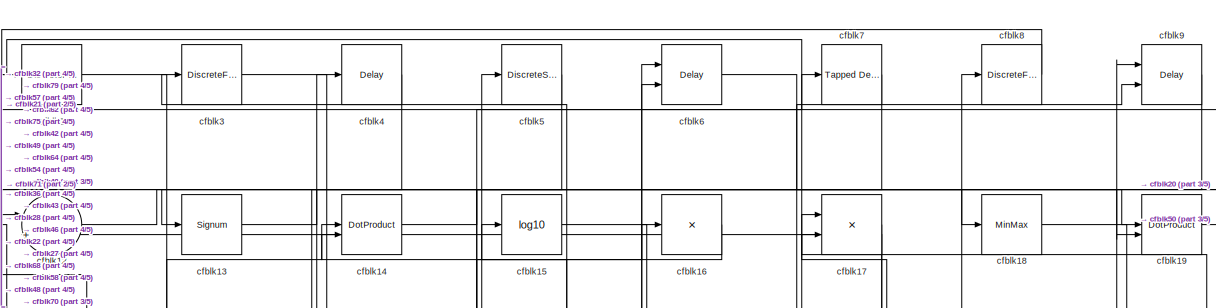
[diagram: root canvas - part 1/5, full width, top band]
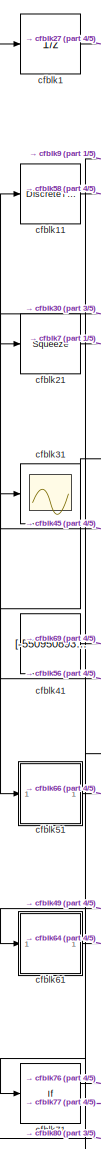
[diagram: root canvas - part 2/5, left side, full height]
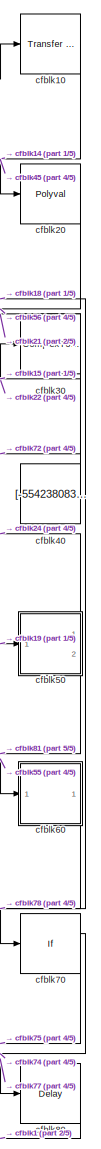
[diagram: root canvas - part 3/5, right side, full height]
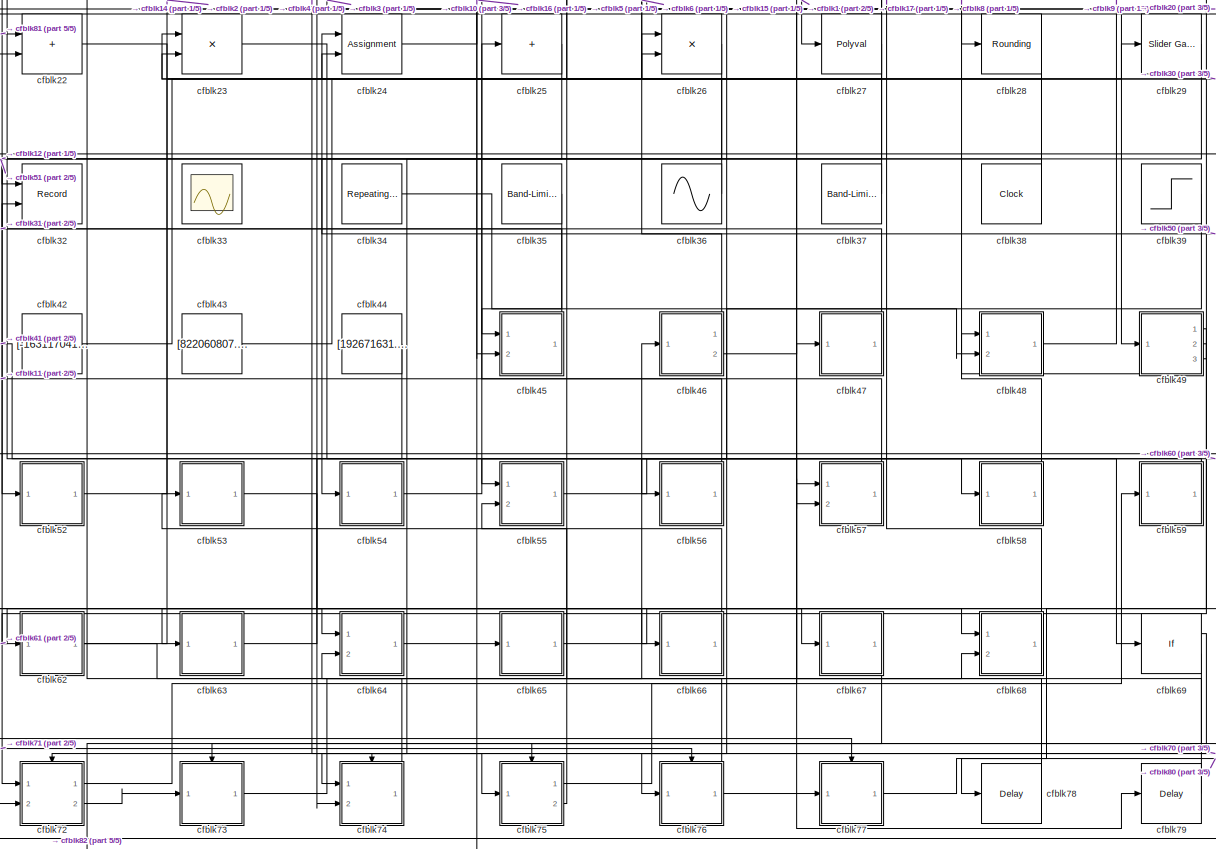
[diagram: root canvas - part 4/5, full width, middle band]
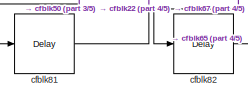
[diagram: root canvas - part 5/5, bottom left region]
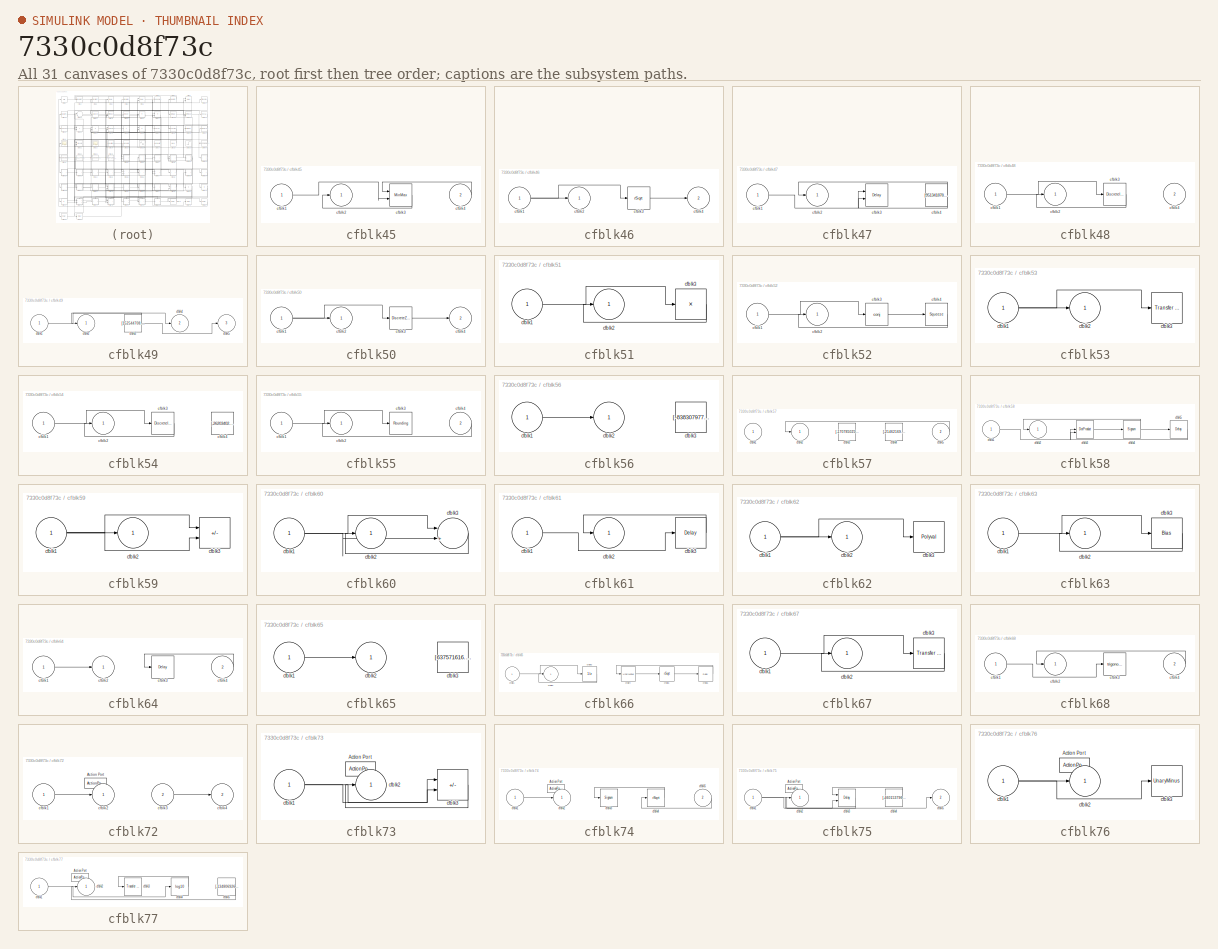
[diagram: thumbnail index - all 31 canvases of the model, root first then tree order]
MODEL slx_7330c0d8f73c
KIND model
CONFIG AbsTol = auto
CONFIG EnableMultiTasking = off
CONFIG FixedStep = auto
CONFIG MaxStep = auto
CONFIG MinStep = auto
CONFIG RelTol = 1e-3
CONFIG SampleTimeConstraint = Unconstrained
CONFIG SolverName = VariableStepAuto
CONFIG StartTime = 0.0
CONFIG StopTime = 10.0
BLOCK [UnitDelay] cfblk1
  HasFrameUpgradeWarning = on
BLOCK [Reference] cfblk10  REF=simulink/Discrete/Transfer Fcn
First Order
  Ports = [1, 1]
  SourceBlock = simulink/Discrete/Transfer Fcn\nFirst Order
  SourceProductBaseCode = SL
  SourceType = First Order Transfer Fcn
BLOCK [DiscreteTransferFcn] cfblk11
  InputPortMap = u0
  Ports = [1, 1]
  SampleTime = 1
BLOCK [Sum] cfblk12
  Inputs = |++
  Ports = [2, 1]
BLOCK [Signum] cfblk13
BLOCK [DotProduct] cfblk14
  OutDataTypeStr = Inherit: Inherit via internal rule
BLOCK [Math] cfblk15
  Operator = log10
  Ports = [1, 1]
BLOCK [Product] cfblk16
  Inputs = *
  Ports = [1, 1]
BLOCK [Product] cfblk17
  Ports = [2, 1]
BLOCK [MinMax] cfblk18
  Ports = [1, 1]
BLOCK [DotProduct] cfblk19
  OutDataTypeStr = Inherit: Inherit via internal rule
BLOCK [DiscreteFilter] cfblk2
  InputPortMap = u0
  Ports = [1, 1]
  SampleTime = 1
BLOCK [Polyval] cfblk20
  Coefs = [ +2.081618890e-019, -1.441693666e-014, +4.719686976e-010, -8.536869453e-006, +1.621573104e-001, -8.087801117e+001 ]
BLOCK [Squeeze] cfblk21
BLOCK [Sum] cfblk22
  IconShape = rectangular
  Ports = [2, 1]
BLOCK [Product] cfblk23
  Ports = [2, 1]
BLOCK [Assignment] cfblk24
  DiagnosticForDimensions = Warning
  IndexOptions = Index vector (dialog)
  Indices = 1
  OutputSizes = 1
  Ports = [2, 1]
BLOCK [Sum] cfblk25
  IconShape = rectangular
  Inputs = +
  Ports = [1, 1]
BLOCK [Product] cfblk26
  Inputs = **
  Ports = [2, 1]
BLOCK [Polyval] cfblk27
  Coefs = [ +2.081618890e-019, -1.441693666e-014, +4.719686976e-010, -8.536869453e-006, +1.621573104e-001, -8.087801117e+001 ]
BLOCK [Rounding] cfblk28
BLOCK [Reference] cfblk29  REF=simulink/Math
Operations/Slider
Gain
  Ports = [1, 1]
  SourceBlock = simulink/Math\nOperations/Slider\nGain
  SourceProductBaseCode = SL
  SourceType = Slider Gain
BLOCK [DiscreteFir] cfblk3
  InputPortMap = u0
  OutputPortMap = o0
  Ports = [1, 1]
  SampleTime = 1
BLOCK [ComplexToRealImag] cfblk30
  Ports = [1, 2]
BLOCK [Scope] cfblk31
  Floating = off
  NumInputPorts = 1
  Ports = [1]
BLOCK [Record] cfblk32
  CompatibilityTag = XY
  FileSettingsInternal = {"entries":[{"content":{"excelSettings":{"content":{},"type":"Streamout.ExcelSettings"}},"type":"Streamout.FileSettingStorage","uuid":"0d098b71-33ef-40f3-9a02-d480e724f9f5"}],"packageUris":["http://schema.mathworks.com/mf0/streamout_blocks/R2020a"],"version":"1.0"}
  Layout = [1 1]
  Ports = [2]
  SignalsInternal = {"entries":[{"content":{"signals":[{"content":{"blockPath":["sampleModel28/cfblk32"],"channel":[],"dimensions":[1],"domain":"sampleModel28/cfblk32","lineColor":"#a2142f","plots":[1],"port":1,"sid":[""],"signalID":1098,"signalName":"cfblk5"},"type":"RecordBlkView.Signal","uuid":"c05ac424-aba4-409f-b4c1-56cef1214d81"},{"content":{"blockPath":["sampleModel28/cfblk32"],"channel":[],"dimensions":[1],"d...<+378ch>
  VisualizationBindings = {"xyplotplugin":{"info":[{"series":[{"bindingParametersList":[{"parameter":"X-Axis","signalID":1098,"signalName":"cfblk5"},{"parameter":"Y-Axis","signalID":1102,"signalName":"cfblk47"}],"seriesID":10739}],"subplotID":1}]}}
BLOCK [Scope] cfblk33
  Floating = on
  NumInputPorts = 1
  Ports = []
BLOCK [Reference] cfblk34  REF=simulink/Sources/Repeating
Sequence
Stair
  Ports = [0, 1]
  SourceBlock = simulink/Sources/Repeating\nSequence\nStair
  SourceProductBaseCode = SL
  SourceType = Repeating Sequence Stair
BLOCK [Reference] cfblk35  REF=simulink/Sources/Band-Limited
White Noise
  Ports = [0, 1]
  SourceBlock = simulink/Sources/Band-Limited\nWhite Noise
  SourceProductBaseCode = SL
  SourceType = Band-Limited White Noise.
BLOCK [Sin] cfblk36
  Amplitude = [581087378.224464]
  Bias = [-112255412.824312]
  Ports = [0, 1]
  SampleTime = 0
BLOCK [Reference] cfblk37  REF=simulink/Sources/Band-Limited
White Noise
  Ports = [0, 1]
  SourceBlock = simulink/Sources/Band-Limited\nWhite Noise
  SourceProductBaseCode = SL
  SourceType = Band-Limited White Noise.
BLOCK [Clock] cfblk38
BLOCK [Step] cfblk39
  After = [921650503.309125]
  Before = [-506979318.166456]
  SampleTime = 0
  Time = [15.000000]
BLOCK [Delay] cfblk4
  InputPortMap = u0
  Ports = [1, 1]
  SampleTime = 1
BLOCK [Constant] cfblk40
  SampleTime = 1
  Value = [-554238083.122668]
BLOCK [Constant] cfblk41
  SampleTime = 1
  Value = [-550950893.327966]
BLOCK [Constant] cfblk42
  SampleTime = 1
  Value = [-163117041.994822]
BLOCK [Constant] cfblk43
  SampleTime = 1
  Value = [822060807.861562]
BLOCK [Constant] cfblk44
  SampleTime = 1
  Value = [192671631.552760]
BLOCK [SubSystem] cfblk45
  Ports = [2, 1]
  RequestExecContextInheritance = off
BLOCK [Inport] cfblk45/cfblk1
BLOCK [Outport] cfblk45/cfblk2
BLOCK [MinMax] cfblk45/cfblk3
  Inputs = 2
  Ports = [2, 1]
BLOCK [Inport] cfblk45/cfblk4
  Port = 2
BLOCK [SubSystem] cfblk46
  Ports = [1, 2]
  RequestExecContextInheritance = off
BLOCK [Inport] cfblk46/cfblk1
BLOCK [Outport] cfblk46/cfblk2
BLOCK [Sqrt] cfblk46/cfblk3
  AlgorithmType = Newton-Raphson
  Operator = rSqrt
BLOCK [Outport] cfblk46/cfblk4
  Port = 2
BLOCK [SubSystem] cfblk47
  Ports = [1, 1]
  RequestExecContextInheritance = off
BLOCK [Inport] cfblk47/cfblk1
BLOCK [Outport] cfblk47/cfblk2
BLOCK [Delay] cfblk47/cfblk3
  DelayLengthSource = Input port
  InputPortMap = u0,p1
  Ports = [2, 1]
  SampleTime = 1
BLOCK [Constant] cfblk47/cfblk4
  SampleTime = 1
  Value = [951341878.299740]
BLOCK [SubSystem] cfblk48
  Ports = [2, 1]
  RequestExecContextInheritance = off
BLOCK [Inport] cfblk48/cfblk1
BLOCK [Outport] cfblk48/cfblk2
BLOCK [DiscreteIntegrator] cfblk48/cfblk3
  ICPrevOutput = DiscIntNeverNeededParam
  ICPrevScaledInput = DiscIntNeverNeededParam
  InitialConditionSetting = Auto
  Ports = [1, 1]
BLOCK [Inport] cfblk48/cfblk4
  Port = 2
BLOCK [SubSystem] cfblk49
  Ports = [1, 3]
  RequestExecContextInheritance = off
BLOCK [Inport] cfblk49/cfblk1
BLOCK [Outport] cfblk49/cfblk2
BLOCK [Constant] cfblk49/cfblk3
  SampleTime = 1
  Value = [152544708.124074]
BLOCK [Outport] cfblk49/cfblk4
  Port = 2
BLOCK [Outport] cfblk49/cfblk5
  Port = 3
BLOCK [DiscreteStateSpace] cfblk5
BLOCK [SubSystem] cfblk50
  Ports = [1, 2]
  RequestExecContextInheritance = off
BLOCK [Inport] cfblk50/cfblk1
BLOCK [Outport] cfblk50/cfblk2
BLOCK [DiscreteZeroPole] cfblk50/cfblk3
  Gain = 1
  Poles = [0 0.5]
BLOCK [Outport] cfblk50/cfblk4
  Port = 2
BLOCK [SubSystem] cfblk51
  Ports = [1, 1]
  RequestExecContextInheritance = off
BLOCK [Inport] cfblk51/cfblk1
BLOCK [Outport] cfblk51/cfblk2
BLOCK [Product] cfblk51/cfblk3
  Inputs = *
  Ports = [1, 1]
BLOCK [SubSystem] cfblk52
  Ports = [1, 1]
  RequestExecContextInheritance = off
BLOCK [Inport] cfblk52/cfblk1
BLOCK [Outport] cfblk52/cfblk2
BLOCK [Math] cfblk52/cfblk3
  Operator = conj
  Ports = [1, 1]
BLOCK [Squeeze] cfblk52/cfblk4
BLOCK [SubSystem] cfblk53
  Ports = [1, 1]
  RequestExecContextInheritance = off
BLOCK [Inport] cfblk53/cfblk1
BLOCK [Outport] cfblk53/cfblk2
BLOCK [Reference] cfblk53/cfblk3  REF=simulink/Discrete/Transfer Fcn
Lead or Lag
  Ports = [1, 1]
  SourceBlock = simulink/Discrete/Transfer Fcn\nLead or Lag
  SourceProductBaseCode = SL
  SourceType = Lead or Lag Compensator
BLOCK [SubSystem] cfblk54
  Ports = [1, 1]
  RequestExecContextInheritance = off
BLOCK [Inport] cfblk54/cfblk1
BLOCK [Outport] cfblk54/cfblk2
BLOCK [DiscreteIntegrator] cfblk54/cfblk3
  ICPrevOutput = DiscIntNeverNeededParam
  ICPrevScaledInput = DiscIntNeverNeededParam
  InitialConditionSetting = Auto
  Ports = [1, 1]
BLOCK [Constant] cfblk54/cfblk4
  SampleTime = 1
  Value = [-26203402.256619]
BLOCK [SubSystem] cfblk55
  Ports = [2, 1]
  RequestExecContextInheritance = off
BLOCK [Inport] cfblk55/cfblk1
BLOCK [Outport] cfblk55/cfblk2
BLOCK [Rounding] cfblk55/cfblk3
BLOCK [Inport] cfblk55/cfblk4
  Port = 2
BLOCK [SubSystem] cfblk56
  Ports = [1, 1]
  RequestExecContextInheritance = off
BLOCK [Inport] cfblk56/cfblk1
BLOCK [Outport] cfblk56/cfblk2
BLOCK [Constant] cfblk56/cfblk3
  SampleTime = 1
  Value = [-838307977.301134]
BLOCK [SubSystem] cfblk57
  Ports = [2, 1]
  RequestExecContextInheritance = off
BLOCK [Inport] cfblk57/cfblk1
BLOCK [Outport] cfblk57/cfblk2
BLOCK [Constant] cfblk57/cfblk3
  SampleTime = 1
  Value = [-170785025.952430]
BLOCK [Constant] cfblk57/cfblk4
  SampleTime = 1
  Value = [-21462169.744561]
BLOCK [Inport] cfblk57/cfblk5
  Port = 2
BLOCK [SubSystem] cfblk58
  Ports = [1, 1]
  RequestExecContextInheritance = off
BLOCK [Inport] cfblk58/cfblk1
BLOCK [Outport] cfblk58/cfblk2
BLOCK [DotProduct] cfblk58/cfblk3
  OutDataTypeStr = Inherit: Inherit via internal rule
BLOCK [Signum] cfblk58/cfblk4
BLOCK [Delay] cfblk58/cfblk5
  InputPortMap = u0
  Ports = [1, 1]
  SampleTime = 1
BLOCK [SubSystem] cfblk59
  Ports = [1, 1]
  RequestExecContextInheritance = off
BLOCK [Inport] cfblk59/cfblk1
BLOCK [Outport] cfblk59/cfblk2
BLOCK [Sum] cfblk59/cfblk3
  IconShape = rectangular
  Inputs = +-
  Ports = [2, 1]
BLOCK [Delay] cfblk6
  DelayLengthSource = Input port
  InputPortMap = u0,p1
  Ports = [2, 1]
  SampleTime = 1
BLOCK [SubSystem] cfblk60
  Ports = [1, 1]
  RequestExecContextInheritance = off
BLOCK [Inport] cfblk60/cfblk1
BLOCK [Outport] cfblk60/cfblk2
BLOCK [Sum] cfblk60/cfblk3
  Inputs = |++
  Ports = [2, 1]
BLOCK [SubSystem] cfblk61
  Ports = [1, 1]
  RequestExecContextInheritance = off
BLOCK [Inport] cfblk61/cfblk1
BLOCK [Outport] cfblk61/cfblk2
BLOCK [Delay] cfblk61/cfblk3
  InputPortMap = u0
  Ports = [1, 1]
  SampleTime = 1
BLOCK [SubSystem] cfblk62
  Ports = [1, 1]
  RequestExecContextInheritance = off
BLOCK [Inport] cfblk62/cfblk1
BLOCK [Outport] cfblk62/cfblk2
BLOCK [Polyval] cfblk62/cfblk3
  Coefs = [ +2.081618890e-019, -1.441693666e-014, +4.719686976e-010, -8.536869453e-006, +1.621573104e-001, -8.087801117e+001 ]
BLOCK [SubSystem] cfblk63
  Ports = [1, 1]
  RequestExecContextInheritance = off
BLOCK [Inport] cfblk63/cfblk1
BLOCK [Outport] cfblk63/cfblk2
BLOCK [Bias] cfblk63/cfblk3
  Bias = [-400558462.816942]
  SaturateOnIntegerOverflow = off
BLOCK [SubSystem] cfblk64
  Ports = [2, 1]
  RequestExecContextInheritance = off
BLOCK [Inport] cfblk64/cfblk1
BLOCK [Outport] cfblk64/cfblk2
BLOCK [Delay] cfblk64/cfblk3
  InputPortMap = u0
  Ports = [1, 1]
  SampleTime = 1
BLOCK [Inport] cfblk64/cfblk4
  Port = 2
BLOCK [SubSystem] cfblk65
  Ports = [1, 1]
  RequestExecContextInheritance = off
BLOCK [Inport] cfblk65/cfblk1
BLOCK [Outport] cfblk65/cfblk2
BLOCK [Constant] cfblk65/cfblk3
  SampleTime = 1
  Value = [637571616.540916]
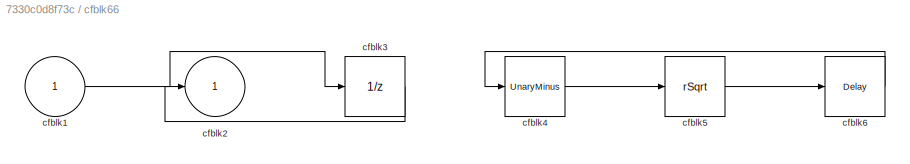
BLOCK [SubSystem] cfblk66
  Ports = [1, 1]
  RequestExecContextInheritance = off
BLOCK [Inport] cfblk66/cfblk1
BLOCK [Outport] cfblk66/cfblk2
BLOCK [UnitDelay] cfblk66/cfblk3
  HasFrameUpgradeWarning = on
BLOCK [UnaryMinus] cfblk66/cfblk4
BLOCK [Sqrt] cfblk66/cfblk5
  AlgorithmType = Newton-Raphson
  Operator = rSqrt
BLOCK [Delay] cfblk66/cfblk6
  InputPortMap = u0
  Ports = [1, 1]
  SampleTime = 1
BLOCK [SubSystem] cfblk67
  Ports = [1, 1]
  RequestExecContextInheritance = off
BLOCK [Inport] cfblk67/cfblk1
BLOCK [Outport] cfblk67/cfblk2
BLOCK [Reference] cfblk67/cfblk3  REF=simulink/Discrete/Transfer Fcn
Real Zero
  Ports = [1, 1]
  SourceBlock = simulink/Discrete/Transfer Fcn\nReal Zero
  SourceProductBaseCode = SL
  SourceType = Transfer Fcn Real Zero
BLOCK [SubSystem] cfblk68
  Ports = [2, 1]
  RequestExecContextInheritance = off
BLOCK [Inport] cfblk68/cfblk1
BLOCK [Outport] cfblk68/cfblk2
BLOCK [Trigonometry] cfblk68/cfblk3
  Ports = [1, 1]
BLOCK [Inport] cfblk68/cfblk4
  Port = 2
BLOCK [If] cfblk69
  IfExpression = u1 >= 0
  Ports = [1, 2]
  SampleTime = 1
BLOCK [Reference] cfblk7  REF=simulink/Discrete/Tapped Delay
  Ports = [1, 1]
  SourceBlock = simulink/Discrete/Tapped Delay
  SourceProductBaseCode = SL
  SourceType = Tapped Delay Line
BLOCK [If] cfblk70
  IfExpression = u1 >= 0
  Ports = [1, 2]
  SampleTime = 1
BLOCK [If] cfblk71
  IfExpression = u1 >= 0
  Ports = [1, 2]
  SampleTime = 1
BLOCK [SubSystem] cfblk72
  Ports = [2, 2, 0, 0, 0, 0, 0, 1]
  RequestExecContextInheritance = off
  TreatAsAtomicUnit = on
BLOCK [ActionPort] cfblk72/Action Port
  ActionPortLabel = if(u1 >= 0)
BLOCK [Inport] cfblk72/cfblk1
BLOCK [Outport] cfblk72/cfblk2
BLOCK [Inport] cfblk72/cfblk3
  Port = 2
BLOCK [Outport] cfblk72/cfblk4
  Port = 2
BLOCK [SubSystem] cfblk73
  Ports = [1, 1, 0, 0, 0, 0, 0, 1]
  RequestExecContextInheritance = off
  TreatAsAtomicUnit = on
BLOCK [ActionPort] cfblk73/Action Port
  ActionPortLabel = else
BLOCK [Inport] cfblk73/cfblk1
BLOCK [Outport] cfblk73/cfblk2
BLOCK [Sum] cfblk73/cfblk3
  IconShape = rectangular
  Inputs = --
  Ports = [2, 1]
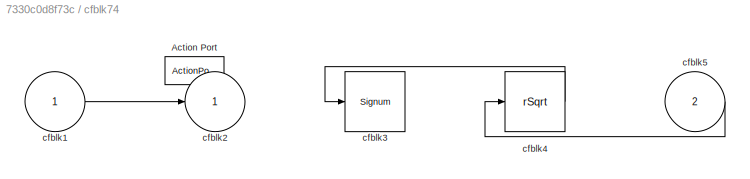
BLOCK [SubSystem] cfblk74
  Ports = [2, 1, 0, 0, 0, 0, 0, 1]
  RequestExecContextInheritance = off
  TreatAsAtomicUnit = on
BLOCK [ActionPort] cfblk74/Action Port
  ActionPortLabel = if(u1 >= 0)
BLOCK [Inport] cfblk74/cfblk1
BLOCK [Outport] cfblk74/cfblk2
BLOCK [Signum] cfblk74/cfblk3
BLOCK [Sqrt] cfblk74/cfblk4
  AlgorithmType = Newton-Raphson
  Operator = rSqrt
BLOCK [Inport] cfblk74/cfblk5
  Port = 2
BLOCK [SubSystem] cfblk75
  Ports = [1, 2, 0, 0, 0, 0, 0, 1]
  RequestExecContextInheritance = off
  TreatAsAtomicUnit = on
BLOCK [ActionPort] cfblk75/Action Port
  ActionPortLabel = else
BLOCK [Inport] cfblk75/cfblk1
BLOCK [Outport] cfblk75/cfblk2
BLOCK [Delay] cfblk75/cfblk3
  DelayLengthSource = Input port
  InputPortMap = u0,p1
  Ports = [2, 1]
BLOCK [Constant] cfblk75/cfblk4
  SampleTime = 1
  Value = [-460153796.942291]
BLOCK [Outport] cfblk75/cfblk5
  Port = 2
BLOCK [SubSystem] cfblk76
  Ports = [1, 1, 0, 0, 0, 0, 0, 1]
  RequestExecContextInheritance = off
  TreatAsAtomicUnit = on
BLOCK [ActionPort] cfblk76/Action Port
  ActionPortLabel = if(u1 >= 0)
BLOCK [Inport] cfblk76/cfblk1
BLOCK [Outport] cfblk76/cfblk2
BLOCK [UnaryMinus] cfblk76/cfblk3
BLOCK [SubSystem] cfblk77
  Ports = [1, 1, 0, 0, 0, 0, 0, 1]
  RequestExecContextInheritance = off
  TreatAsAtomicUnit = on
BLOCK [ActionPort] cfblk77/Action Port
  ActionPortLabel = else
BLOCK [Inport] cfblk77/cfblk1
BLOCK [Outport] cfblk77/cfblk2
BLOCK [Reference] cfblk77/cfblk3  REF=simulink/Discrete/Transfer Fcn
Lead or Lag
  Ports = [1, 1]
  SourceBlock = simulink/Discrete/Transfer Fcn\nLead or Lag
  SourceProductBaseCode = SL
  SourceType = Lead or Lag Compensator
BLOCK [Math] cfblk77/cfblk4
  Operator = log10
  Ports = [1, 1]
BLOCK [Constant] cfblk77/cfblk5
  SampleTime = 1
  Value = [-134806926.317161]
BLOCK [Delay] cfblk78
  InputPortMap = u0
  Ports = [1, 1]
  SampleTime = 1
BLOCK [Delay] cfblk79
  InputPortMap = u0
  Ports = [1, 1]
  SampleTime = 1
BLOCK [DiscreteFilter] cfblk8
  InputPortMap = u0
  Ports = [1, 1]
  SampleTime = 1
BLOCK [Delay] cfblk80
  InputPortMap = u0
  Ports = [1, 1]
  SampleTime = 1
BLOCK [Delay] cfblk81
  InputPortMap = u0
  Ports = [1, 1]
  SampleTime = 1
BLOCK [Delay] cfblk82
  InputPortMap = u0
  Ports = [1, 1]
  SampleTime = 1
BLOCK [Delay] cfblk9
  InputPortMap = u0,e6
  Ports = [2, 1]
  SampleTime = 1
  ShowEnablePort = on
LINE cfblk10:1 -> cfblk45:2
LINE cfblk11:1 -> cfblk58:1
LINE cfblk12:1 -> cfblk18:1
LINE cfblk13:1 -> cfblk19:1
LINE cfblk14:1 -> cfblk20:1
LINE cfblk15:1 -> cfblk28:1
LINE cfblk16:1 -> cfblk14:2
LINE cfblk17:1 -> cfblk22:2
LINE cfblk18:1 -> cfblk70:1
LINE cfblk19:1 -> cfblk50:1
LINE cfblk1:1 -> cfblk27:1
LINE cfblk20:1 -> cfblk56:1
LINE cfblk21:1 -> cfblk7:1
LINE cfblk22:1 -> cfblk30:1
LINE cfblk23:1 -> cfblk77:1
LINE cfblk24:1 -> cfblk10:1
LINE cfblk25:1 -> cfblk52:1
LINE cfblk26:1 -> cfblk54:1
NET cfblk27:1 -> cfblk12:2, cfblk24:2, cfblk51:1
LINE cfblk28:1 -> cfblk74:1
LINE cfblk29:1 -> cfblk72:1
LINE cfblk2:1 -> cfblk57:2
LINE cfblk30:1 -> cfblk21:1
LINE cfblk30:2 -> cfblk72:2
LINE cfblk34:1 -> cfblk48:2
LINE cfblk35:1 -> cfblk45:1
LINE cfblk36:1 -> cfblk6:1
LINE cfblk37:1 -> cfblk23:1
LINE cfblk38:1 -> cfblk23:2
LINE cfblk39:1 -> cfblk76:1
LINE cfblk3:1 -> cfblk49:1
LINE cfblk40:1 -> cfblk15:1
LINE cfblk41:1 -> cfblk69:1
LINE cfblk42:1 -> cfblk4:1
LINE cfblk43:1 -> cfblk6:2
LINE cfblk44:1 -> cfblk74:2
LINE cfblk45/cfblk1:1 -> cfblk45/cfblk3:2
LINE cfblk45/cfblk3:1 -> cfblk45/cfblk2:1
LINE cfblk45/cfblk4:1 -> cfblk45/cfblk3:1
LINE cfblk45:1 -> cfblk31:1
NET cfblk46/cfblk1:1 -> cfblk46/cfblk2:1, cfblk46/cfblk3:1
LINE cfblk46/cfblk3:1 -> cfblk46/cfblk4:1
LINE cfblk46:1 -> cfblk26:1
LINE cfblk46:2 -> cfblk9:2
LINE cfblk47/cfblk1:1 -> cfblk47/cfblk3:1
NET cfblk47/cfblk4:1 -> cfblk47/cfblk2:1, cfblk47/cfblk3:2
LINE cfblk47:1 -> cfblk32:2
LINE cfblk48/cfblk1:1 -> cfblk48/cfblk3:1
LINE cfblk48/cfblk3:1 -> cfblk48/cfblk2:1
LINE cfblk48:1 -> cfblk9:1
LINE cfblk49/cfblk1:1 -> cfblk49/cfblk4:1
NET cfblk49/cfblk3:1 -> cfblk49/cfblk2:1, cfblk49/cfblk5:1
LINE cfblk49:1 -> cfblk62:1
LINE cfblk49:2 -> cfblk61:1
NET cfblk49:3 -> cfblk17:2, cfblk48:1
LINE cfblk4:1 -> cfblk75:1
NET cfblk50/cfblk1:1 -> cfblk50/cfblk2:1, cfblk50/cfblk3:1
LINE cfblk50/cfblk3:1 -> cfblk50/cfblk4:1
LINE cfblk50:1 -> cfblk24:1
LINE cfblk50:2 -> cfblk81:1
LINE cfblk51/cfblk1:1 -> cfblk51/cfblk3:1
LINE cfblk51/cfblk3:1 -> cfblk51/cfblk2:1
LINE cfblk51:1 -> cfblk66:1
LINE cfblk52/cfblk1:1 -> cfblk52/cfblk3:1
LINE cfblk52/cfblk3:1 -> cfblk52/cfblk4:1
LINE cfblk52/cfblk4:1 -> cfblk52/cfblk2:1
LINE cfblk52:1 -> cfblk29:1
NET cfblk53/cfblk1:1 -> cfblk53/cfblk2:1, cfblk53/cfblk3:1
LINE cfblk53:1 -> cfblk68:1
LINE cfblk54/cfblk1:1 -> cfblk54/cfblk3:1
LINE cfblk54/cfblk3:1 -> cfblk54/cfblk2:1
LINE cfblk54:1 -> cfblk5:1
LINE cfblk55/cfblk1:1 -> cfblk55/cfblk3:1
LINE cfblk55/cfblk4:1 -> cfblk55/cfblk2:1
LINE cfblk55:1 -> cfblk60:1
LINE cfblk56/cfblk1:1 -> cfblk56/cfblk2:1
LINE cfblk56:1 -> cfblk11:1
LINE cfblk57/cfblk5:1 -> cfblk57/cfblk2:1
LINE cfblk57:1 -> cfblk25:1
LINE cfblk58/cfblk1:1 -> cfblk58/cfblk3:1
LINE cfblk58/cfblk3:1 -> cfblk58/cfblk4:1
NET cfblk58/cfblk4:1 -> cfblk58/cfblk2:1, cfblk58/cfblk5:1
LINE cfblk58/cfblk5:1 -> cfblk58/cfblk3:2
LINE cfblk58:1 -> cfblk8:1
NET cfblk59/cfblk1:1 -> cfblk59/cfblk2:1, cfblk59/cfblk3:1, cfblk59/cfblk3:2
LINE cfblk59:1 -> cfblk55:1
LINE cfblk5:1 -> cfblk32:1
NET cfblk60/cfblk1:1 -> cfblk60/cfblk3:1, cfblk60/cfblk3:2
LINE cfblk60/cfblk3:1 -> cfblk60/cfblk2:1
LINE cfblk60:1 -> cfblk78:1
LINE cfblk61/cfblk1:1 -> cfblk61/cfblk3:1
LINE cfblk61/cfblk3:1 -> cfblk61/cfblk2:1
LINE cfblk61:1 -> cfblk64:1
NET cfblk62/cfblk1:1 -> cfblk62/cfblk2:1, cfblk62/cfblk3:1
NET cfblk62:1 -> cfblk14:1, cfblk68:2
LINE cfblk63/cfblk1:1 -> cfblk63/cfblk3:1
LINE cfblk63/cfblk3:1 -> cfblk63/cfblk2:1
LINE cfblk63:1 -> cfblk26:2
LINE cfblk64/cfblk1:1 -> cfblk64/cfblk2:1
LINE cfblk64/cfblk4:1 -> cfblk64/cfblk3:1
LINE cfblk64:1 -> cfblk16:1
LINE cfblk65/cfblk1:1 -> cfblk65/cfblk2:1
LINE cfblk65:1 -> cfblk67:1
LINE cfblk66/cfblk1:1 -> cfblk66/cfblk3:1
LINE cfblk66/cfblk3:1 -> cfblk66/cfblk2:1
LINE cfblk66/cfblk4:1 -> cfblk66/cfblk5:1
LINE cfblk66/cfblk5:1 -> cfblk66/cfblk6:1
LINE cfblk66/cfblk6:1 -> cfblk66/cfblk4:1
LINE cfblk66:1 -> cfblk53:1
LINE cfblk67/cfblk1:1 -> cfblk67/cfblk3:1
LINE cfblk67/cfblk3:1 -> cfblk67/cfblk2:1
LINE cfblk67:1 -> cfblk82:1
LINE cfblk68/cfblk1:1 -> cfblk68/cfblk3:1
LINE cfblk68/cfblk4:1 -> cfblk68/cfblk2:1
NET cfblk68:1 -> cfblk17:1, cfblk63:1
LINE cfblk69:1 -> cfblk72:ifaction
LINE cfblk69:2 -> cfblk73:ifaction
LINE cfblk6:1 -> cfblk19:2
LINE cfblk70:1 -> cfblk74:ifaction
LINE cfblk70:2 -> cfblk75:ifaction
LINE cfblk71:1 -> cfblk76:ifaction
LINE cfblk71:2 -> cfblk77:ifaction
LINE cfblk72/cfblk1:1 -> cfblk72/cfblk2:1
LINE cfblk72/cfblk3:1 -> cfblk72/cfblk4:1
LINE cfblk72:1 -> cfblk59:1
LINE cfblk72:2 -> cfblk73:1
NET cfblk73/cfblk1:1 -> cfblk73/cfblk3:1, cfblk73/cfblk3:2
LINE cfblk73/cfblk3:1 -> cfblk73/cfblk2:1
LINE cfblk73:1 -> cfblk46:1
LINE cfblk74/cfblk1:1 -> cfblk74/cfblk2:1
LINE cfblk74/cfblk4:1 -> cfblk74/cfblk3:1
LINE cfblk74/cfblk5:1 -> cfblk74/cfblk4:1
LINE cfblk74:1 -> cfblk64:2
NET cfblk75/cfblk1:1 -> cfblk75/cfblk3:2, cfblk75/cfblk5:1
LINE cfblk75/cfblk3:1 -> cfblk75/cfblk2:1
LINE cfblk75/cfblk4:1 -> cfblk75/cfblk3:1
LINE cfblk75:1 -> cfblk47:1
LINE cfblk75:2 -> cfblk3:1
NET cfblk76/cfblk1:1 -> cfblk76/cfblk2:1, cfblk76/cfblk3:1
NET cfblk76:1 -> cfblk55:2, cfblk79:1
LINE cfblk77/cfblk1:1 -> cfblk77/cfblk4:1
LINE cfblk77/cfblk4:1 -> cfblk77/cfblk3:1
LINE cfblk77/cfblk5:1 -> cfblk77/cfblk2:1
LINE cfblk77:1 -> cfblk80:1
LINE cfblk78:1 -> cfblk57:1
LINE cfblk79:1 -> cfblk12:1
LINE cfblk7:1 -> cfblk13:1
LINE cfblk80:1 -> cfblk1:1
LINE cfblk81:1 -> cfblk22:1
LINE cfblk82:1 -> cfblk65:1
LINE cfblk8:1 -> cfblk2:1
LINE cfblk9:1 -> cfblk71:1
note: NET lines group one-source signal fan-out (src -> all destinations, sorted); 1:1 wires keep LINE
